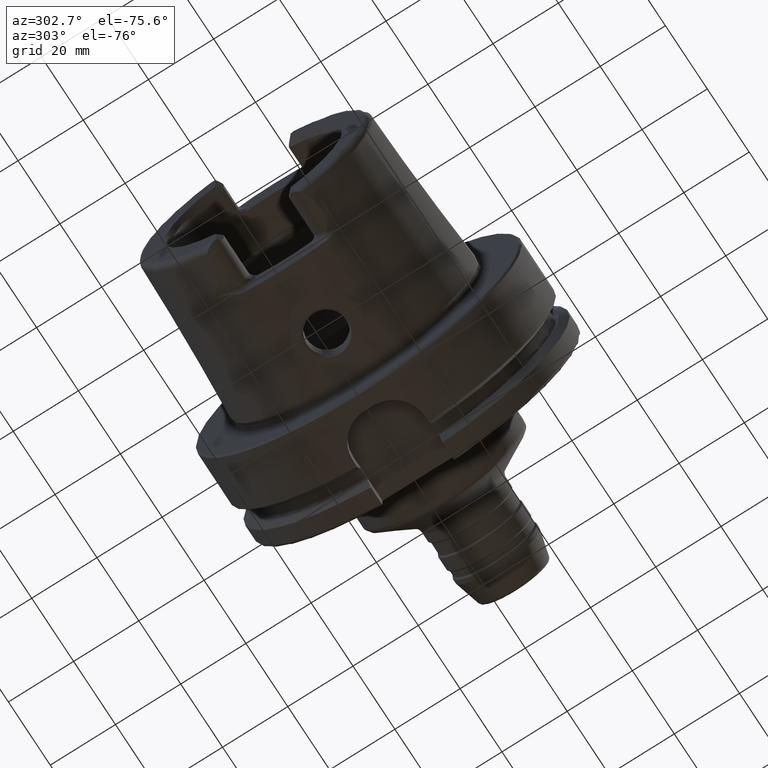
[diagram: clean part render]
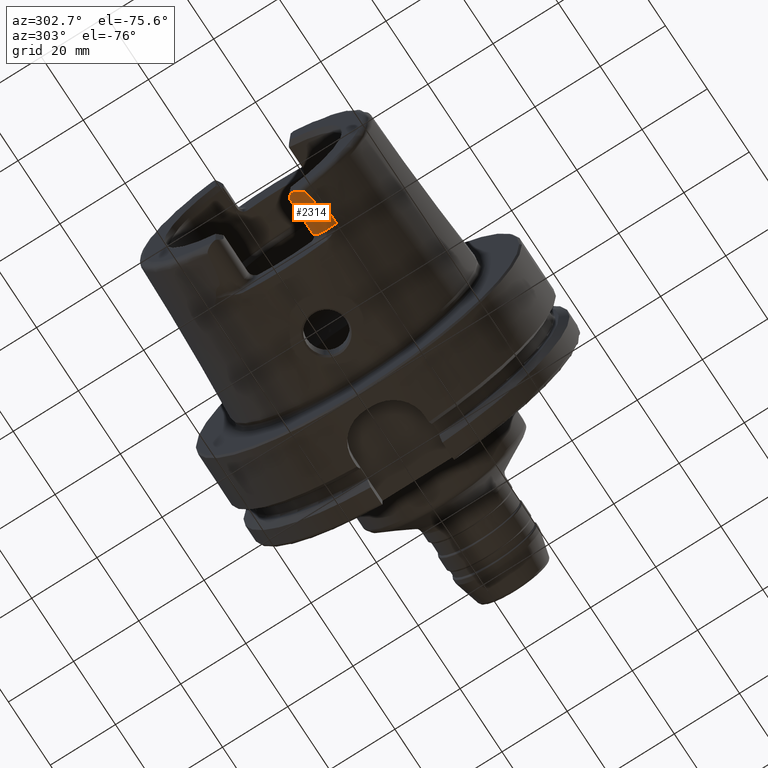
[diagram: same view with one face highlighted and labeled with its STEP entity id]
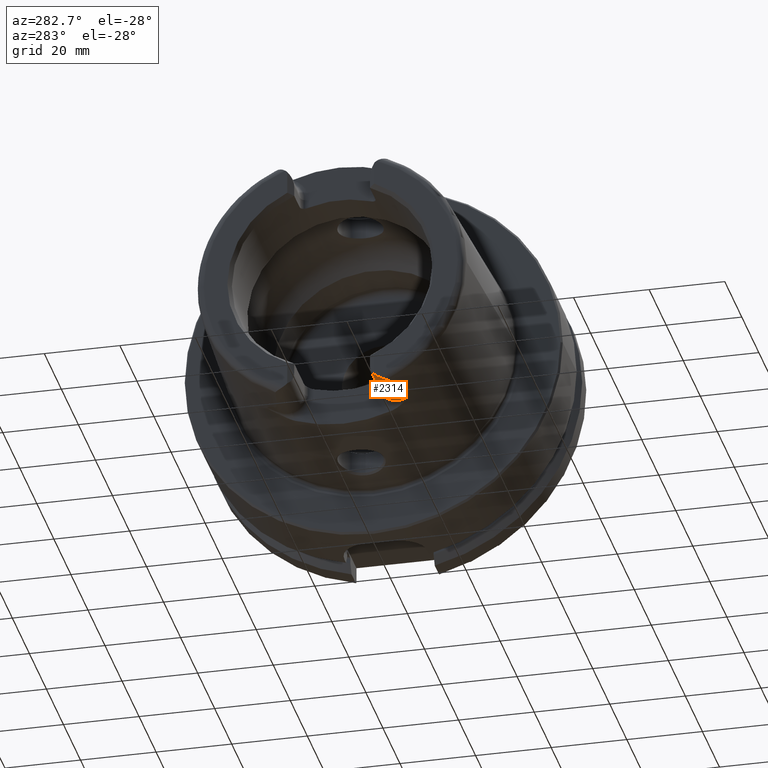
[diagram: same view with one face highlighted and labeled with its STEP entity id]
A machine part, auxiliary view. The second image highlights one B-rep face of the part: STEP entity #2314.
A second angle (auxiliary view) of the same face is appended — the face is thin or edge-on in the first view.
In plain terms, the highlighted cylindrical surface (edge-blend (fillet) strip) has radius 4.88 mm, axis along (-1, 0, 0).
Its self-contained STEP definition (entity closure, byte-faithful):
#33=B_SPLINE_CURVE_WITH_KNOTS('',3,(#3794,#3795,#3796,#3797,#3798,#3799,
#3800,#3801,#3802,#3803,#3804,#3805,#3806,#3807,#3808,#3809,#3810,#3811),
 .UNSPECIFIED.,.F.,.F.,(4,2,2,2,2,2,2,2,4),(0.941531918456969,1.22402920907858,
1.42803407725834,1.6320389454381,1.70619252829239,1.78034611114668,1.80087123762391,
1.81113380086252,1.82139636410113),.UNSPECIFIED.);
#34=B_SPLINE_CURVE_WITH_KNOTS('',3,(#3813,#3814,#3815,#3816,#3817,#3818,
#3819,#3820,#3821,#3822,#3823,#3824),.UNSPECIFIED.,.F.,.F.,(4,2,2,2,2,4),
(-0.330531435638015,-0.267908000768776,-0.159978118105109,-0.0786368985358203,
-0.0319888850382474,0.),.UNSPECIFIED.);
#87=ELLIPSE('',#2552,6.90136218438071,4.88);
#195=LINE('',#3786,#307);
#196=LINE('',#3792,#308);
#307=VECTOR('',#3032,10.);
#308=VECTOR('',#3037,10.);
#398=CYLINDRICAL_SURFACE('',#2554,4.88);
#465=FACE_OUTER_BOUND('',#606,.T.);
#606=EDGE_LOOP('',(#1706,#1707,#1708,#1709,#1710,#1711,#1712,#1713));
#788=CIRCLE('',#2555,4.88);
#789=CIRCLE('',#2556,4.88);
#790=CIRCLE('',#2557,4.88);
#972=VERTEX_POINT('',#3776);
#973=VERTEX_POINT('',#3777);
#976=VERTEX_POINT('',#3785);
#977=VERTEX_POINT('',#3787);
#978=VERTEX_POINT('',#3789);
#979=VERTEX_POINT('',#3791);
#980=VERTEX_POINT('',#3793);
#981=VERTEX_POINT('',#3812);
#1244=EDGE_CURVE('',#972,#973,#87,.T.);
#1248=EDGE_CURVE('',#976,#972,#195,.T.);
#1249=EDGE_CURVE('',#977,#976,#788,.T.);
#1250=EDGE_CURVE('',#978,#977,#789,.T.);
#1251=EDGE_CURVE('',#978,#979,#196,.T.);
#1252=EDGE_CURVE('',#980,#979,#33,.T.);
#1253=EDGE_CURVE('',#981,#980,#34,.T.);
#1254=EDGE_CURVE('',#973,#981,#790,.T.);
#1706=ORIENTED_EDGE('',*,*,#1244,.F.);
#1707=ORIENTED_EDGE('',*,*,#1248,.F.);
#1708=ORIENTED_EDGE('',*,*,#1249,.F.);
#1709=ORIENTED_EDGE('',*,*,#1250,.F.);
#1710=ORIENTED_EDGE('',*,*,#1251,.T.);
#1711=ORIENTED_EDGE('',*,*,#1252,.F.);
#1712=ORIENTED_EDGE('',*,*,#1253,.F.);
#1713=ORIENTED_EDGE('',*,*,#1254,.F.);
#2314=ADVANCED_FACE('',(#465),#398,.T.);
#2552=AXIS2_PLACEMENT_3D('',#3778,#3024,#3025);
#2554=AXIS2_PLACEMENT_3D('',#3784,#3030,#3031);
#2555=AXIS2_PLACEMENT_3D('',#3788,#3033,#3034);
#2556=AXIS2_PLACEMENT_3D('',#3790,#3035,#3036);
#2557=AXIS2_PLACEMENT_3D('',#3825,#3038,#3039);
#3024=DIRECTION('center_axis',(-0.707106781186546,0.707106781186549,0.));
#3025=DIRECTION('ref_axis',(-0.707106781186549,-0.707106781186546,0.));
#3030=DIRECTION('center_axis',(-1.,0.,0.));
#3031=DIRECTION('ref_axis',(0.,-1.,0.));
#3032=DIRECTION('',(-1.,0.,0.));
#3033=DIRECTION('center_axis',(1.,0.,0.));
#3034=DIRECTION('ref_axis',(0.,0.510937901715381,-0.8596176246394));
#3035=DIRECTION('center_axis',(1.,0.,0.));
#3036=DIRECTION('ref_axis',(0.,-0.477884921181368,-0.878422450821629));
#3037=DIRECTION('',(-1.,0.,0.));
#3038=DIRECTION('center_axis',(-1.,0.,0.));
#3039=DIRECTION('ref_axis',(0.,-1.,0.));
#3776=CARTESIAN_POINT('',(-48.5,-10.01,-27.37));
#3777=CARTESIAN_POINT('',(-50.,-11.51,-30.8899431813596));
#3778=CARTESIAN_POINT('Origin',(-53.38,-14.89,-27.37));
#3784=CARTESIAN_POINT('Origin',(-35.,-14.89,-27.37));
#3785=CARTESIAN_POINT('',(-37.,-10.01,-27.37));
#3786=CARTESIAN_POINT('',(-35.,-10.01,-27.37));
#3787=CARTESIAN_POINT('',(-37.,-13.4017880550143,-32.0175396939458));
#3788=CARTESIAN_POINT('Origin',(-37.,-14.89,-27.37));
#3789=CARTESIAN_POINT('',(-37.,-17.2220784153651,-31.6567015600095));
#3790=CARTESIAN_POINT('Origin',(-37.,-14.89,-27.37));
#3791=CARTESIAN_POINT('',(-39.3086860506441,-17.2220784153651,-31.6567015600095));
#3792=CARTESIAN_POINT('',(-35.,-17.2220784153651,-31.6567015600095));
#3793=CARTESIAN_POINT('',(-48.1000748840304,-15.0787152148571,-32.2463497175327));
#3794=CARTESIAN_POINT('Ctrl Pts',(-48.1000748840304,-15.0787152148571,-32.2463497175327));
#3795=CARTESIAN_POINT('Ctrl Pts',(-47.0815953489825,-15.2100460868363,-32.2412671998384));
#3796=CARTESIAN_POINT('Ctrl Pts',(-46.0708874643597,-15.3507400024476,-32.2307282620297));
#3797=CARTESIAN_POINT('Ctrl Pts',(-44.3638273319757,-15.6187903492069,-32.19660809961));
#3798=CARTESIAN_POINT('Ctrl Pts',(-43.6583569770469,-15.7387900082285,-32.1775602969968));
#3799=CARTESIAN_POINT('Ctrl Pts',(-42.2774968259687,-16.0065639510366,-32.1225120780024));
#3800=CARTESIAN_POINT('Ctrl Pts',(-41.6015350915672,-16.1516844838416,-32.0879931345296));
#3801=CARTESIAN_POINT('Ctrl Pts',(-40.7121103138057,-16.4018770942044,-32.0104206666339));
#3802=CARTESIAN_POINT('Ctrl Pts',(-40.4538120390228,-16.4807891402054,-31.9844991546726));
#3803=CARTESIAN_POINT('Ctrl Pts',(-39.9557031082111,-16.6668123685081,-31.9161154581445));
#3804=CARTESIAN_POINT('Ctrl Pts',(-39.7137538085319,-16.7691556019457,-31.8763882092881));
#3805=CARTESIAN_POINT('Ctrl Pts',(-39.4690330405114,-16.9505386197656,-31.7938497879436));
#3806=CARTESIAN_POINT('Ctrl Pts',(-39.41492287308,-16.9977687004959,-31.7717242618145));
#3807=CARTESIAN_POINT('Ctrl Pts',(-39.3545931085758,-17.0769444761517,-31.7326299669));
#3808=CARTESIAN_POINT('Ctrl Pts',(-39.3379356243703,-17.1047575471073,-31.7185977246152));
#3809=CARTESIAN_POINT('Ctrl Pts',(-39.314977865636,-17.1622985367361,-31.688808329826));
#3810=CARTESIAN_POINT('Ctrl Pts',(-39.3086860506439,-17.1920288621925,-31.6730493074242));
#3811=CARTESIAN_POINT('Ctrl Pts',(-39.3086860506439,-17.2220784153651,-31.6567015600096));
#3812=CARTESIAN_POINT('',(-50.,-12.0743049948301,-31.355757348091));
#3813=CARTESIAN_POINT('Ctrl Pts',(-50.,-12.0743049948301,-31.355757348091));
#3814=CARTESIAN_POINT('Ctrl Pts',(-50.,-12.285838123051,-31.5051926299063));
#3815=CARTESIAN_POINT('Ctrl Pts',(-49.9653696826563,-12.5170331398668,-31.6430588255455));
#3816=CARTESIAN_POINT('Ctrl Pts',(-49.7810065498998,-13.1911222585012,-31.9692156023965));
#3817=CARTESIAN_POINT('Ctrl Pts',(-49.5806767805336,-13.6194685503756,-32.0969374367804));
#3818=CARTESIAN_POINT('Ctrl Pts',(-49.1716377200869,-14.2730899346346,-32.2192774131036));
#3819=CARTESIAN_POINT('Ctrl Pts',(-48.9774936618895,-14.5201969661755,-32.2395201073332));
#3820=CARTESIAN_POINT('Ctrl Pts',(-48.6675943633754,-14.8125911006811,-32.2505512851489));
#3821=CARTESIAN_POINT('Ctrl Pts',(-48.5398374959923,-14.912197389574,-32.2504544601106));
#3822=CARTESIAN_POINT('Ctrl Pts',(-48.3063803700173,-15.0305209025153,-32.2482139663407));
#3823=CARTESIAN_POINT('Ctrl Pts',(-48.2058276135777,-15.0650786147019,-32.2468774553032));
#3824=CARTESIAN_POINT('Ctrl Pts',(-48.1000748840303,-15.0787152148571,-32.2463497175327));
#3825=CARTESIAN_POINT('Origin',(-50.,-14.89,-27.37));